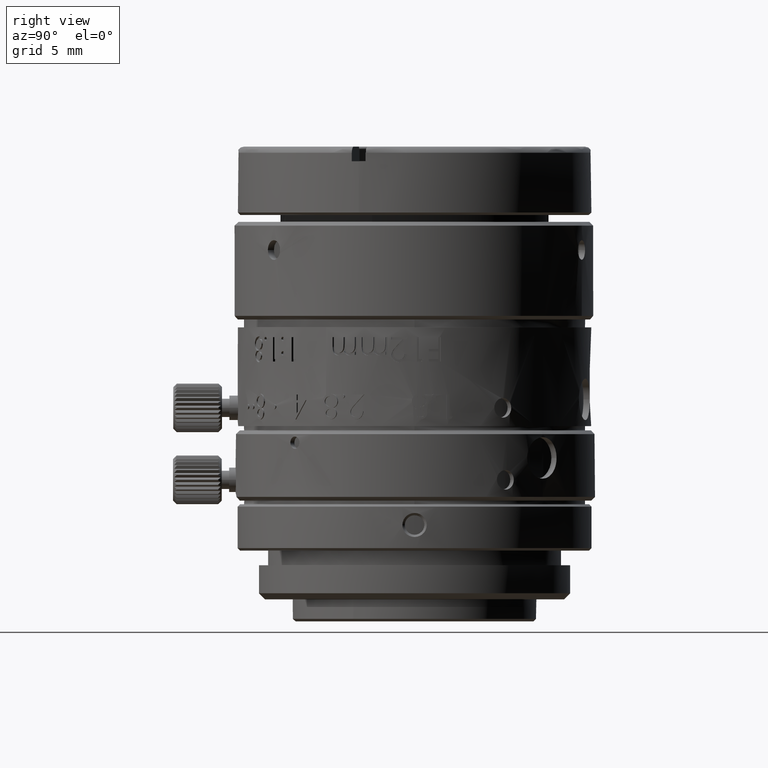
[diagram: clean part render]
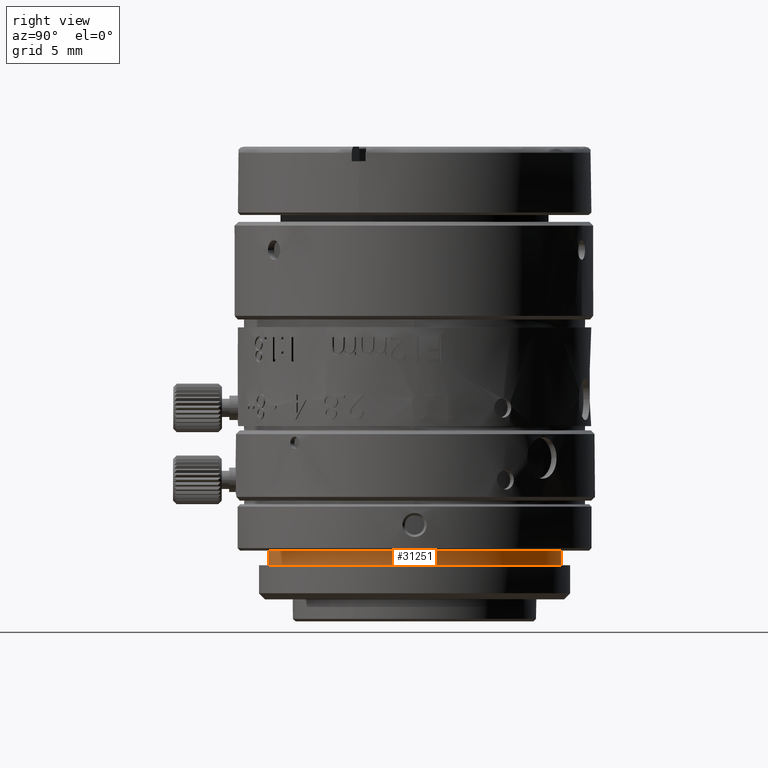
[diagram: same view with one face highlighted and labeled with its STEP entity id]
A machine part, right view. The second image highlights one B-rep face of the part: STEP entity #31251.
In plain terms, the highlighted face is a freeform B-spline surface patch.
Its self-contained STEP definition (entity closure, byte-faithful):
#943 = CARTESIAN_POINT ( 'NONE',  ( 7.403646175666025009, -1.283485732999999795, -9.328615389999999508 ) ) ;
#1138 = CARTESIAN_POINT ( 'NONE',  ( 7.403646170743541255, -25.28348573588353077, -10.52861538999999702 ) ) ;
#1171 = ORIENTED_EDGE ( 'NONE', *, *, #9447, .F. ) ;
#1326 = CARTESIAN_POINT ( 'NONE',  ( 0.3742089222816544769, -1.283485729991465929, -9.328615389999999508 ) ) ;
#1336 = CARTESIAN_POINT ( 'NONE',  ( 12.37420892155823715, -20.31292298812726926, -9.328615389999999508 ) ) ;
#1613 = CARTESIAN_POINT ( 'NONE',  ( 1.162140153333871995, -1.283485723974400639, -9.328615390000001284 ) ) ;
#1637 = ORIENTED_EDGE ( 'NONE', *, *, #30717, .F. ) ;
#1801 = CARTESIAN_POINT ( 'NONE',  ( 9.914093139720014491, -5.961502068042154434, -9.328615390000003060 ) ) ;
#2000 = CARTESIAN_POINT ( 'NONE',  ( 11.98991453277493768, -16.39736095635411672, -9.328615390000001284 ) ) ;
#2213 = CARTESIAN_POINT ( 'NONE',  ( 10.78959540753599811, -7.271783808442004116, -10.52861539000000057 ) ) ;
#2390 = CARTESIAN_POINT ( 'NONE',  ( 9.914093139719998504, -20.60546939795787225, -9.328615390000001284 ) ) ;
#3184 = EDGE_CURVE ( 'NONE', #16851, #30883, #20232, .T. ) ;
#3532 = CARTESIAN_POINT ( 'NONE',  ( 7.403646175666025009, -1.283485732999999795, -10.52861538999999702 ) ) ;
#4121 = CARTESIAN_POINT ( 'NONE',  ( 12.37420892444176168, -6.254048482795218966, -10.52861538999999702 ) ) ;
#4991 = CARTESIAN_POINT ( 'NONE',  ( 1.162140153333872217, -25.28348574202559007, -9.328615389999999508 ) ) ;
#5189 = CARTESIAN_POINT ( 'NONE',  ( 9.416641817237593415, -21.21161559594853685, -9.328615389999999508 ) ) ;
#5209 = CARTESIAN_POINT ( 'NONE',  ( 9.416641808838001282, -5.355355875550002587, -10.52861538999999702 ) ) ;
#5580 = CARTESIAN_POINT ( 'NONE',  ( 6.385910846579745836, -2.868099238344008928, -9.328615389999999508 ) ) ;
#5601 = CARTESIAN_POINT ( 'NONE',  ( 9.914093137695992652, -20.60546939819400336, -10.52861539000000057 ) ) ;
#5869 = CARTESIAN_POINT ( 'NONE',  ( 0.3742089197183455229, -25.28348573607599903, -10.52861538999999880 ) ) ;
#6197 = B_SPLINE_CURVE_WITH_KNOTS ( 'NONE', 3,
 ( #20405, #4991, #17597, #29764, #32949, #11386, #17208, #29379, #23590, #5189, #2390, #17401, #32571, #8191, #2000, #8390, #8584, #14586, #14202, #23395, #20799, #29178, #20208, #1801, #14010, #14397, #26766, #5580, #20010, #38371, #7805, #28982, #1613, #25989 ),
 .UNSPECIFIED., .F., .F.,
 ( 4, 2, 2, 2, 2, 2, 2, 2, 2, 2, 2, 2, 2, 2, 2, 2, 4 ),
 ( 4.712388980384689674, 4.908738521234051966, 5.105088062083414258, 5.301437602932776549, 5.497787143782137953, 5.694136684631500245, 5.890486225480861648, 6.086835766330223940, 6.283185307179585344, 6.479534848028947636, 6.675884388878309039, 6.872233929727670443, 7.068583470577032735, 7.264933011426395026, 7.461282552275756430, 7.657632093125117834, 7.853981633974480125 ),
 .UNSPECIFIED. ) ;
#6739 = CARTESIAN_POINT ( 'NONE',  ( 0.3742089180775176604, -25.28348573300000268, -9.328615389999999508 ) ) ;
#7319 = B_SPLINE_CURVE_WITH_KNOTS ( 'NONE', 1,
 ( #1326, #37299 ),
 .UNSPECIFIED., .F., .F.,
 ( 2, 2 ),
 ( -1.000000000000000000, 0.0000000000000000000 ),
 .UNSPECIFIED. ) ;
#7330 = CARTESIAN_POINT ( 'NONE',  ( 0.3742089230000000266, -1.283485732999999795, -9.328615389999999508 ) ) ;
#7805 = CARTESIAN_POINT ( 'NONE',  ( 3.488084146354136994, -1.667780123225063971, -9.328615389999999508 ) ) ;
#8191 = CARTESIAN_POINT ( 'NONE',  ( 11.76229153713680731, -17.14773339680985487, -9.328615390000003060 ) ) ;
#8209 = CARTESIAN_POINT ( 'NONE',  ( 4.238456566300000894, -1.895403109653999607, -10.52861538999999880 ) ) ;
#8390 = CARTESIAN_POINT ( 'NONE',  ( 12.29735005217546195, -14.85177825407148866, -9.328615390000003060 ) ) ;
#8410 = CARTESIAN_POINT ( 'NONE',  ( 12.29735005362600120, -14.85177822718599217, -10.52861538999999880 ) ) ;
#8584 = CARTESIAN_POINT ( 'NONE',  ( 12.37420893202560279, -14.07141696333385461, -9.328615389999999508 ) ) ;
#9447 = EDGE_CURVE ( 'NONE', #26946, #33184, #6197, .T. ) ;
#11386 = CARTESIAN_POINT ( 'NONE',  ( 5.694363646350119268, -24.06851190328027812, -9.328615389999999508 ) ) ;
#11407 = CARTESIAN_POINT ( 'NONE',  ( 12.29735005362599942, -11.71519322161001320, -10.52861539000000057 ) ) ;
#11606 = CARTESIAN_POINT ( 'NONE',  ( 10.78959540753600344, -19.29518764035400125, -10.52861538999999880 ) ) ;
#12003 = CARTESIAN_POINT ( 'NONE',  ( 5.694363629416014483, -24.06851189926599588, -10.52861538999999880 ) ) ;
#13139 = CARTESIAN_POINT ( 'NONE',  ( 0.3742089180775176604, -25.28348573300000268, -10.52861538999999880 ) ) ;
#13747 =( BOUNDED_SURFACE ( )  B_SPLINE_SURFACE ( 1, 3, ( 
 ( #7330, #943, #15738, #34312, #1336, #31502, #6739 ),
 ( #19529, #3532, #4121, #28314, #27914, #1138, #13139 ) ),
 .UNSPECIFIED., .F., .F., .F. ) 
 B_SPLINE_SURFACE_WITH_KNOTS ( ( 2, 2 ),
 ( 4, 3, 4 ),
 ( 0.0000000000000000000, 1.000000000000000000 ),
 ( 0.0000000000000000000, 0.5000000000000000000, 1.000000000000000000 ),
 .UNSPECIFIED. ) 
 GEOMETRIC_REPRESENTATION_ITEM ( )  RATIONAL_B_SPLINE_SURFACE ( (
 ( 1.000000000000000000, 0.8047378540760217192, 0.8047378540760217192, 1.000000000000000000, 0.8047378540760217192, 0.8047378540760217192, 1.000000000000000000),
 ( 1.000000000000000000, 0.8047378540760217192, 0.8047378540760217192, 1.000000000000000000, 0.8047378540760217192, 0.8047378540760217192, 1.000000000000000000) ) ) 
 REPRESENTATION_ITEM ( '' )  SURFACE ( )  );
#14010 = CARTESIAN_POINT ( 'NONE',  ( 9.416641836533047538, -5.355355850755980640, -9.328615389999999508 ) ) ;
#14202 = CARTESIAN_POINT ( 'NONE',  ( 12.29735005217546728, -11.71519321192852914, -9.328615389999999508 ) ) ;
#14221 = CARTESIAN_POINT ( 'NONE',  ( 0.3742089222816544769, -1.283485729923999896, -10.52861538999999880 ) ) ;
#14397 = CARTESIAN_POINT ( 'NONE',  ( 8.302338785948549571, -4.241052838762419341, -9.328615390000001284 ) ) ;
#14416 = CARTESIAN_POINT ( 'NONE',  ( 7.696192588194002759, -3.743601518304001896, -10.52861539000000057 ) ) ;
#14586 = CARTESIAN_POINT ( 'NONE',  ( 12.37420893202559924, -12.49555450266614898, -9.328615390000001284 ) ) ;
#14802 = CARTESIAN_POINT ( 'NONE',  ( 8.302338780449987965, -22.32591861883800988, -10.52861538999999880 ) ) ;
#15738 = CARTESIAN_POINT ( 'NONE',  ( 12.37420892444176168, -6.254048482795218966, -9.328615389999999508 ) ) ;
#16787 = CARTESIAN_POINT ( 'NONE',  ( 0.3742089222816544769, -1.283485729991465929, -9.328615389999999508 ) ) ;
#16851 = VERTEX_POINT ( 'NONE', #32336 ) ;
#17208 = CARTESIAN_POINT ( 'NONE',  ( 6.385910846579742284, -23.69887222765599688, -9.328615390000001284 ) ) ;
#17401 = CARTESIAN_POINT ( 'NONE',  ( 10.78959541765600072, -19.29518765657972423, -9.328615389999999508 ) ) ;
#17420 = CARTESIAN_POINT ( 'NONE',  ( 9.914093137695992652, -5.961502085009994900, -10.52861538999999702 ) ) ;
#17597 = CARTESIAN_POINT ( 'NONE',  ( 1.942501444071451866, -25.20662686217547233, -9.328615389999997731 ) ) ;
#17619 = CARTESIAN_POINT ( 'NONE',  ( 11.98991453921799710, -10.16961053214598820, -10.52861538999999702 ) ) ;
#17803 = CARTESIAN_POINT ( 'NONE',  ( 9.416641791634010161, -21.21161557324598945, -10.52861538999999880 ) ) ;
#18046 = B_SPLINE_CURVE_WITH_KNOTS ( 'NONE', 1,
 ( #35274, #19915 ),
 .UNSPECIFIED., .F., .F.,
 ( 2, 2 ),
 ( -1.000000000000000000, 0.0000000000000000000 ),
 .UNSPECIFIED. ) ;
#18824 = EDGE_LOOP ( 'NONE', ( #23524, #30880, #1637, #1171 ) ) ;
#19529 = CARTESIAN_POINT ( 'NONE',  ( 0.3742089230000000266, -1.283485732999999795, -10.52861538999999880 ) ) ;
#19915 = CARTESIAN_POINT ( 'NONE',  ( 0.3742089197183455229, -25.28348573600855076, -9.328615389999999508 ) ) ;
#20010 = CARTESIAN_POINT ( 'NONE',  ( 5.694363646350124597, -2.498459582015196911, -9.328615389999997731 ) ) ;
#20208 = CARTESIAN_POINT ( 'NONE',  ( 10.78959541765598118, -7.271783809420243827, -9.328615389999999508 ) ) ;
#20232 = B_SPLINE_CURVE_WITH_KNOTS ( 'NONE', 3,
 ( #14221, #26400, #23414, #20820, #8209, #20423, #32590, #14416, #32970, #5209, #17420, #2213, #26593, #38780, #17619, #11407, #23610, #35782, #8410, #20623, #32783, #38975, #11606, #5601, #17803, #14802, #26981, #24005, #12003, #24578, #24192, #37177, #33563, #36368 ),
 .UNSPECIFIED., .F., .F.,
 ( 4, 2, 2, 2, 2, 2, 2, 2, 2, 2, 2, 2, 2, 2, 2, 2, 4 ),
 ( 0.0000000000000000000, 0.1963495408493622640, 0.3926990816987244171, 0.5890486225480865423, 0.7853981633974487231, 0.9817477042468109039, 1.178097245096173085, 1.374446785945535376, 1.570796326794897668, 1.767145867644259960, 1.963495408493622030, 2.159844949342984322, 2.356194490192346613, 2.552544031041708905, 2.748893571891071197, 2.945243112740433489, 3.141592653589795336 ),
 .UNSPECIFIED. ) ;
#20405 = CARTESIAN_POINT ( 'NONE',  ( 0.3742089197183455229, -25.28348573600855076, -9.328615389999999508 ) ) ;
#20423 = CARTESIAN_POINT ( 'NONE',  ( 5.694363646620001163, -2.498459566733999271, -10.52861539000000057 ) ) ;
#20623 = CARTESIAN_POINT ( 'NONE',  ( 11.98991453921799533, -16.39736095105800473, -10.52861539000000057 ) ) ;
#20799 = CARTESIAN_POINT ( 'NONE',  ( 11.76229151784133364, -9.419238069190130958, -9.328615389999997731 ) ) ;
#20820 = CARTESIAN_POINT ( 'NONE',  ( 3.488084141058001464, -1.667780116782001443, -10.52861538999999524 ) ) ;
#23395 = CARTESIAN_POINT ( 'NONE',  ( 11.98991453277493058, -10.16961050964587088, -9.328615389999999508 ) ) ;
#23414 = CARTESIAN_POINT ( 'NONE',  ( 1.942501417185999335, -1.360344602374001344, -10.52861539000000057 ) ) ;
#23524 = ORIENTED_EDGE ( 'NONE', *, *, #24894, .F. ) ;
#23590 = CARTESIAN_POINT ( 'NONE',  ( 8.302338805244001918, -22.32591864653306502, -9.328615389999999508 ) ) ;
#23610 = CARTESIAN_POINT ( 'NONE',  ( 12.37420893222800089, -12.49555450698399817, -10.52861538999999880 ) ) ;
#24005 = CARTESIAN_POINT ( 'NONE',  ( 6.385910847557994430, -23.69887221753600670, -10.52861538999999880 ) ) ;
#24192 = CARTESIAN_POINT ( 'NONE',  ( 3.488084123854000129, -24.89919134921800037, -10.52861538999999880 ) ) ;
#24578 = CARTESIAN_POINT ( 'NONE',  ( 4.238456583503987574, -24.67156835634601109, -10.52861538999999524 ) ) ;
#24894 = EDGE_CURVE ( 'NONE', #30883, #26946, #18046, .T. ) ;
#25989 = CARTESIAN_POINT ( 'NONE',  ( 0.3742089222816544769, -1.283485729991465929, -9.328615389999999508 ) ) ;
#26400 = CARTESIAN_POINT ( 'NONE',  ( 1.162140149016000823, -1.283485723772001652, -10.52861539000000057 ) ) ;
#26593 = CARTESIAN_POINT ( 'NONE',  ( 11.15923508926599439, -7.963331026583995609, -10.52861538999999702 ) ) ;
#26766 = CARTESIAN_POINT ( 'NONE',  ( 7.696192587957853881, -3.743601516279993824, -9.328615389999999508 ) ) ;
#26946 = VERTEX_POINT ( 'NONE', #38593 ) ;
#26981 = CARTESIAN_POINT ( 'NONE',  ( 7.696192570990006310, -22.82336994769600480, -10.52861539000000057 ) ) ;
#27914 = CARTESIAN_POINT ( 'NONE',  ( 12.37420892155823715, -20.31292298812726926, -10.52861538999999702 ) ) ;
#28314 = CARTESIAN_POINT ( 'NONE',  ( 12.37420892300000119, -13.28348573546124101, -10.52861538999999880 ) ) ;
#28982 = CARTESIAN_POINT ( 'NONE',  ( 1.942501444071464745, -1.360344603824533261, -9.328615390000001284 ) ) ;
#29178 = CARTESIAN_POINT ( 'NONE',  ( 11.15923509328026952, -7.963331009649872172, -9.328615390000004837 ) ) ;
#29379 = CARTESIAN_POINT ( 'NONE',  ( 7.696192587957857434, -22.82336994972000355, -9.328615389999999508 ) ) ;
#29764 = CARTESIAN_POINT ( 'NONE',  ( 3.488084146354148540, -24.89919134277493384, -9.328615390000001284 ) ) ;
#30717 = EDGE_CURVE ( 'NONE', #33184, #16851, #7319, .T. ) ;
#30880 = ORIENTED_EDGE ( 'NONE', *, *, #3184, .F. ) ;
#30883 = VERTEX_POINT ( 'NONE', #5869 ) ;
#31251 = ADVANCED_FACE ( 'NONE', ( #37113 ), #13747, .F. ) ;
#31502 = CARTESIAN_POINT ( 'NONE',  ( 7.403646170743541255, -25.28348573588353077, -9.328615389999999508 ) ) ;
#32336 = CARTESIAN_POINT ( 'NONE',  ( 0.3742089222816544769, -1.283485729923999896, -10.52861538999999880 ) ) ;
#32571 = CARTESIAN_POINT ( 'NONE',  ( 11.15923507398479586, -18.60364045635014207, -9.328615389999999508 ) ) ;
#32590 = CARTESIAN_POINT ( 'NONE',  ( 6.385910830353995316, -2.868099248463997331, -10.52861538999999702 ) ) ;
#32783 = CARTESIAN_POINT ( 'NONE',  ( 11.76229154634600249, -17.14773337630000327, -10.52861538999999880 ) ) ;
#32949 = CARTESIAN_POINT ( 'NONE',  ( 4.238456586809887128, -24.67156832784132803, -9.328615390000001284 ) ) ;
#32970 = CARTESIAN_POINT ( 'NONE',  ( 8.302338763245998621, -4.241052864365999042, -10.52861538999999880 ) ) ;
#33184 = VERTEX_POINT ( 'NONE', #16787 ) ;
#33563 = CARTESIAN_POINT ( 'NONE',  ( 1.162140149015985724, -25.28348574222799527, -10.52861538999999880 ) ) ;
#34312 = CARTESIAN_POINT ( 'NONE',  ( 12.37420892300000119, -13.28348573546124101, -9.328615389999999508 ) ) ;
#35274 = CARTESIAN_POINT ( 'NONE',  ( 0.3742089197183455229, -25.28348573607599903, -10.52861538999999880 ) ) ;
#35782 = CARTESIAN_POINT ( 'NONE',  ( 12.37420893222799911, -14.07141695901600009, -10.52861539000000057 ) ) ;
#36368 = CARTESIAN_POINT ( 'NONE',  ( 0.3742089197183455229, -25.28348573607599903, -10.52861538999999880 ) ) ;
#37113 = FACE_OUTER_BOUND ( 'NONE', #18824, .T. ) ;
#37177 = CARTESIAN_POINT ( 'NONE',  ( 1.942501434390002002, -25.20662686362599914, -10.52861538999999702 ) ) ;
#37299 = CARTESIAN_POINT ( 'NONE',  ( 0.3742089222816544769, -1.283485729923999896, -10.52861538999999880 ) ) ;
#38371 = CARTESIAN_POINT ( 'NONE',  ( 4.238456586809877358, -1.895403118863203229, -9.328615390000004837 ) ) ;
#38593 = CARTESIAN_POINT ( 'NONE',  ( 0.3742089197183455229, -25.28348573600855076, -9.328615389999999508 ) ) ;
#38780 = CARTESIAN_POINT ( 'NONE',  ( 11.76229154634600249, -9.419238072496007419, -10.52861538999999880 ) ) ;
#38975 = CARTESIAN_POINT ( 'NONE',  ( 11.15923508926600149, -18.60364045661999555, -10.52861539000000057 ) ) ;